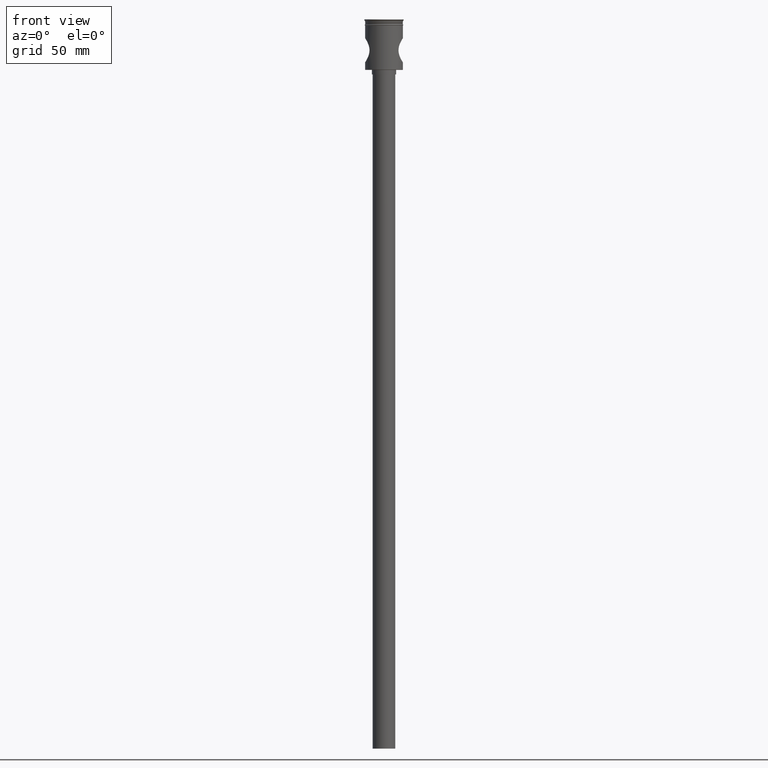
[diagram: clean part render]
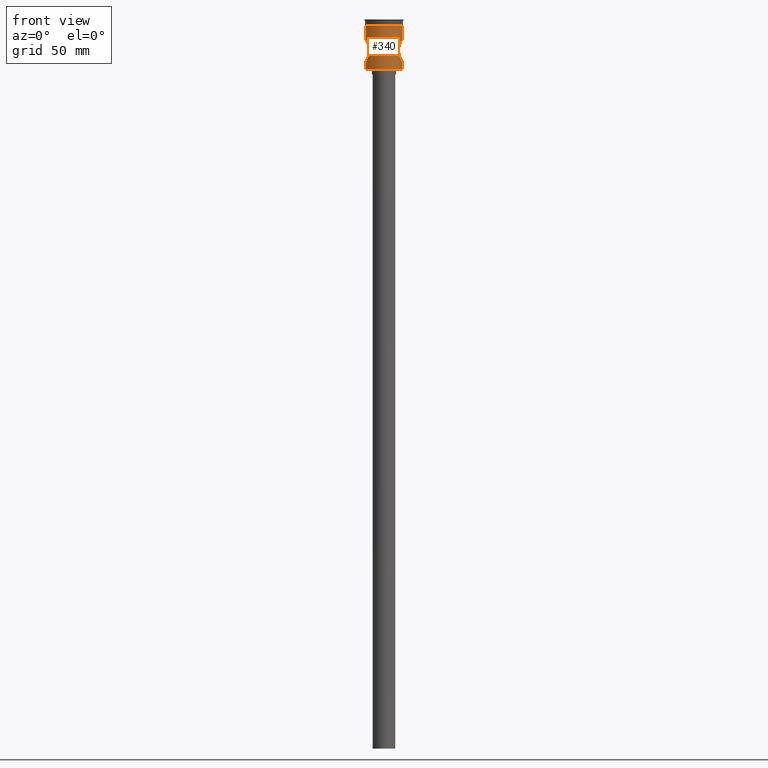
[diagram: same view with one face highlighted and labeled with its STEP entity id]
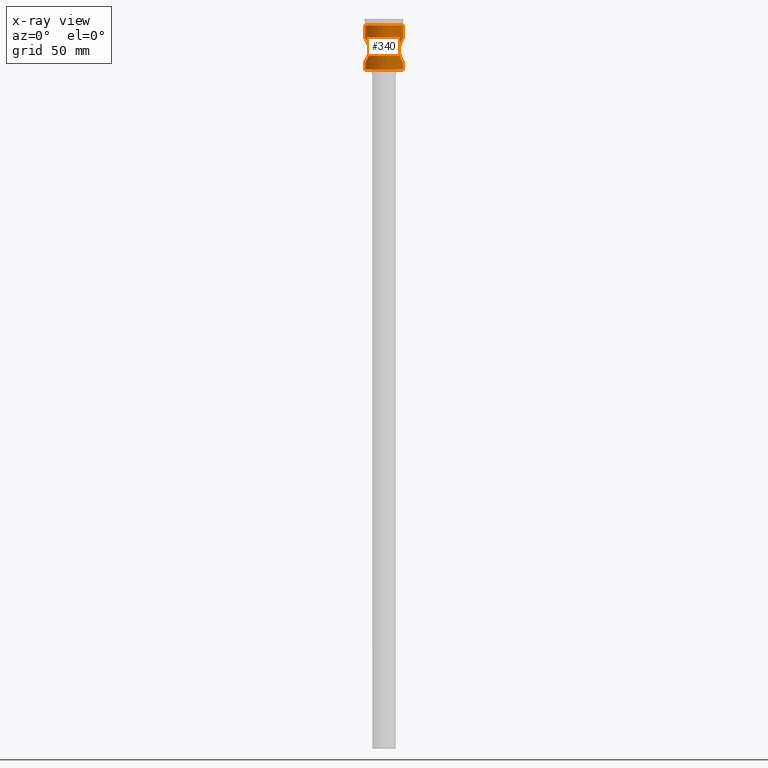
[diagram: x-ray of the same camera — body ghosted, the highlighted face saturated]
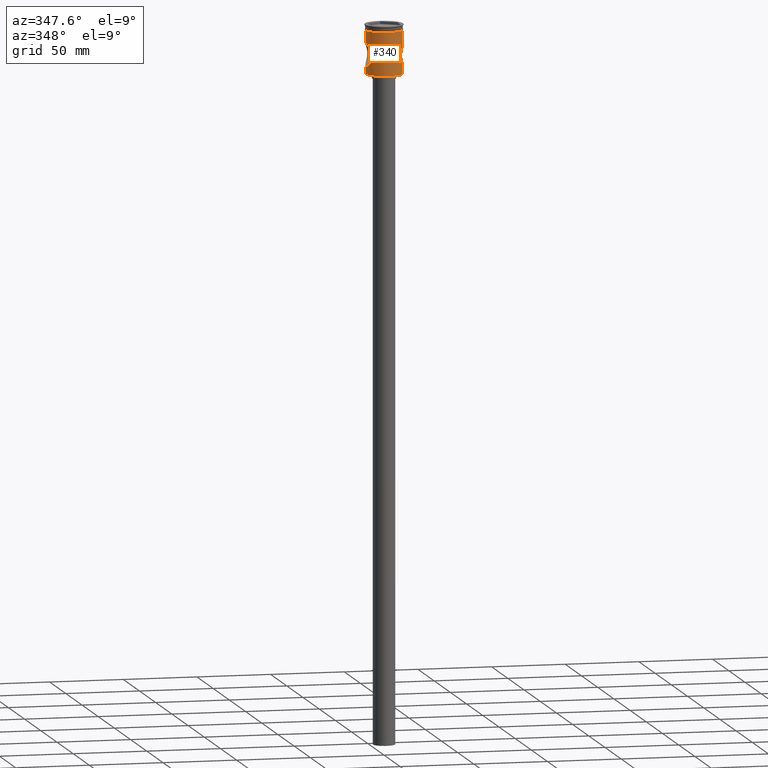
[diagram: same view with one face highlighted and labeled with its STEP entity id]
A machine part, front view. The second image highlights one B-rep face of the part: STEP entity #340.
The next image is the same camera in x-ray: the body ghosted, the highlighted face saturated — about 0% of this face is hidden behind the body in this view.
A second angle (auxiliary view) of the same face is appended — the face is thin or edge-on in the first view.
In plain terms, the highlighted cylindrical surface (edge-blend (fillet) strip) has radius 12.5 mm, axis along (-0, -0, 1).
Its self-contained STEP definition (entity closure, byte-faithful):
#4 = CARTESIAN_POINT ( 'NONE',  ( 9.694572521403603815, -7.891132293869996595, -21.84205955273027655 ) ) ;
#8 = CARTESIAN_POINT ( 'NONE',  ( -12.45636595211379039, -1.077990071471288225, -12.56832314098377168 ) ) ;
#22 = CARTESIAN_POINT ( 'NONE',  ( 11.82426725651903432, -4.061341696050346783, -13.60264837205234123 ) ) ;
#44 = EDGE_CURVE ( 'NONE', #1001, #663, #1115, .T. ) ;
#67 = CARTESIAN_POINT ( 'NONE',  ( 12.22681975302657875, -2.645907749991192937, -28.06777968347509855 ) ) ;
#78 = CYLINDRICAL_SURFACE ( 'NONE', #1112, 12.49999999999999645 ) ;
#81 = CARTESIAN_POINT ( 'NONE',  ( -11.97893811598799019, -3.606041726093998090, -27.66040104288468982 ) ) ;
#86 = EDGE_CURVE ( 'NONE', #1170, #1282, #863, .T. ) ;
#94 = CARTESIAN_POINT ( 'NONE',  ( -10.68141965030588025, -6.495024738260811503, -25.17753358840529643 ) ) ;
#114 = CARTESIAN_POINT ( 'NONE',  ( -12.49999999999999645, -0.5455086926773379252, -28.50000000000000355 ) ) ;
#127 = CARTESIAN_POINT ( 'NONE',  ( 12.49134899006260824, -0.5368360781239377433, -12.51349676487751417 ) ) ;
#130 = DIRECTION ( 'NONE',  ( 1.000000000000000000, 0.000000000000000000, 0.000000000000000000 ) ) ;
#140 = CARTESIAN_POINT ( 'NONE',  ( -9.831927431485985025, -7.719646222588841589, -18.38418844340871061 ) ) ;
#153 = CARTESIAN_POINT ( 'NONE',  ( 0.000000000000000000, 0.000000000000000000, -3.999999999999996447 ) ) ;
#155 = CARTESIAN_POINT ( 'NONE',  ( -10.77000853576665840, -6.353706358841932911, -15.61224821672882968 ) ) ;
#158 = CARTESIAN_POINT ( 'NONE',  ( -12.49999999999999645, 1.530843252841608374E-15, -12.50000000000000178 ) ) ;
#161 = CARTESIAN_POINT ( 'NONE',  ( 10.24171529436143047, -7.170737983946684047, -16.91536847051582981 ) ) ;
#167 = CARTESIAN_POINT ( 'NONE',  ( 12.49999999999999645, 0.000000000000000000, -28.50000000000000355 ) ) ;
#176 = CARTESIAN_POINT ( 'NONE',  ( 12.49999999999999645, 0.000000000000000000, -28.50000000000000355 ) ) ;
#185 = CARTESIAN_POINT ( 'NONE',  ( 11.32275814528974323, -5.311017539796695885, -26.50426606429732601 ) ) ;
#192 = B_SPLINE_CURVE_WITH_KNOTS ( 'NONE', 3,
 ( #1322, #279, #127, #253, #1096, #504, #1201, #723, #974, #22, #1447, #513, #1328, #713, #837, #364, #1547, #1209, #161, #980, #634, #484, #950, #1423, #829, #608, #4, #491, #1307, #261, #1189, #1316, #1475, #292, #989, #1227, #774, #185, #882, #1252, #535, #403, #1339, #67, #1006, #553, #754, #997, #1113, #176 ),
 .UNSPECIFIED., .F., .F.,
 ( 4, 2, 2, 2, 2, 2, 2, 2, 2, 2, 2, 2, 2, 2, 2, 2, 2, 2, 2, 2, 2, 2, 2, 2, 4 ),
 ( 0.02576999226182778019, 0.02657439273090745485, 0.02737879319998712951, 0.02898759413814647884, 0.02979199460722615350, 0.03059639507630582816, 0.03140079554538549589, 0.03220519601446517055, 0.03381399695262450600, 0.03542279789078385532, 0.03703159882894319771, 0.03864039976710254010, 0.03944480023618220782, 0.04024920070526187554, 0.04105360117434153633, 0.04185800164342120405, 0.04346680258158053950, 0.04427120305066021416, 0.04507560351973988189, 0.04668440445789922427, 0.04748880492697889200, 0.04829320539605856666, 0.04990200633421790904, 0.05070640680329758371, 0.05151080727237725143 ),
 .UNSPECIFIED. ) ;
#203 = EDGE_CURVE ( 'NONE', #416, #1173, #192, .T. ) ;
#253 = CARTESIAN_POINT ( 'NONE',  ( 12.45680753857802969, -1.072351860696455050, -12.56763034230891307 ) ) ;
#258 = CARTESIAN_POINT ( 'NONE',  ( -12.49999999999999645, 1.530843252841608374E-15, -12.50000000000000178 ) ) ;
#261 = CARTESIAN_POINT ( 'NONE',  ( 9.953764986108032176, -7.561899278404376368, -23.12434326371111837 ) ) ;
#274 = CARTESIAN_POINT ( 'NONE',  ( -9.650015180279874372, -7.946443617263751591, -19.43182631452544484 ) ) ;
#279 = CARTESIAN_POINT ( 'NONE',  ( 12.49999999999999645, -0.2686376769289277044, -12.50000000000000355 ) ) ;
#292 = CARTESIAN_POINT ( 'NONE',  ( 10.68057655226026625, -6.496405684036827388, -25.17560278568680232 ) ) ;
#319 = DIRECTION ( 'NONE',  ( -0.000000000000000000, -0.000000000000000000, 1.000000000000000000 ) ) ;
#325 = CARTESIAN_POINT ( 'NONE',  ( -10.95759851502933024, -6.017955333637138970, -25.77724630296189190 ) ) ;
#329 = CARTESIAN_POINT ( 'NONE',  ( -11.04973041360231534, -5.847541344671410180, -25.96539333561140950 ) ) ;
#336 = CARTESIAN_POINT ( 'NONE',  ( -10.77326865999855166, -6.342037053953383463, -25.38299917530804706 ) ) ;
#340 = ADVANCED_FACE ( 'NONE', ( #1122 ), #78, .T. ) ;
#360 = CARTESIAN_POINT ( 'NONE',  ( -9.825351555881612242, -7.728608913096384647, -22.63340818634064533 ) ) ;
#364 = CARTESIAN_POINT ( 'NONE',  ( 10.95468395994246968, -6.033861169773391708, -15.22247198273765534 ) ) ;
#403 = CARTESIAN_POINT ( 'NONE',  ( 11.97255694559600769, -3.600821400007698792, -27.64858792036709190 ) ) ;
#409 = ORIENTED_EDGE ( 'NONE', *, *, #1121, .F. ) ;
#410 = CARTESIAN_POINT ( 'NONE',  ( 12.49999999999999645, 0.000000000000000000, 0.000000000000000000 ) ) ;
#416 = VERTEX_POINT ( 'NONE', #1021 ) ;
#422 = DIRECTION ( 'NONE',  ( 1.000000000000000000, 0.000000000000000000, 0.000000000000000000 ) ) ;
#449 = CARTESIAN_POINT ( 'NONE',  ( -11.50038868166273787, -4.919615502726673029, -26.82980181432884592 ) ) ;
#454 = AXIS2_PLACEMENT_3D ( 'NONE', #153, #499, #130 ) ;
#458 = CARTESIAN_POINT ( 'NONE',  ( -10.24633185769106802, -7.164154995734958398, -24.09758546550434133 ) ) ;
#482 = CARTESIAN_POINT ( 'NONE',  ( -9.951847861737379120, -7.567903109691756391, -23.14472692481474425 ) ) ;
#484 = CARTESIAN_POINT ( 'NONE',  ( 9.650481006454375787, -7.945901119098954801, -19.42646661241496986 ) ) ;
#491 = CARTESIAN_POINT ( 'NONE',  ( 9.780592607289705143, -7.784260626568321406, -22.36450508717211960 ) ) ;
#499 = DIRECTION ( 'NONE',  ( -0.000000000000000000, -0.000000000000000000, 1.000000000000000000 ) ) ;
#504 = CARTESIAN_POINT ( 'NONE',  ( 12.32814927920563264, -2.133064077394895897, -12.77081634138414401 ) ) ;
#513 = CARTESIAN_POINT ( 'NONE',  ( 11.58231855636714869, -4.706562070356851812, -14.02588132130155785 ) ) ;
#535 = CARTESIAN_POINT ( 'NONE',  ( 11.82492588981187076, -4.059453444830931623, -27.39848256787114877 ) ) ;
#553 = CARTESIAN_POINT ( 'NONE',  ( 12.42914744973298191, -1.355224675475571683, -28.38894657095907803 ) ) ;
#555 = CARTESIAN_POINT ( 'NONE',  ( -11.32278361962054980, -5.310903790031504812, -26.50427824932999243 ) ) ;
#556 = EDGE_CURVE ( 'NONE', #558, #893, #876, .T. ) ;
#558 = VERTEX_POINT ( 'NONE', #962 ) ;
#572 = CARTESIAN_POINT ( 'NONE',  ( -10.41453676133786210, -6.920961814154464875, -24.54462048307798838 ) ) ;
#575 = VECTOR ( 'NONE', #1462, 1000.000000000000000 ) ;
#591 = CARTESIAN_POINT ( 'NONE',  ( 0.000000000000000000, 0.000000000000000000, -33.30000000000011084 ) ) ;
#604 = DIRECTION ( 'NONE',  ( -0.000000000000000000, -0.000000000000000000, 1.000000000000000000 ) ) ;
#606 = EDGE_CURVE ( 'NONE', #416, #663, #732, .T. ) ;
#608 = CARTESIAN_POINT ( 'NONE',  ( 9.660877953051814515, -7.932130301633685932, -21.57471352266809106 ) ) ;
#611 = CARTESIAN_POINT ( 'NONE',  ( -10.41350288148657555, -6.922544769963277389, -16.45796141815630520 ) ) ;
#621 = CARTESIAN_POINT ( 'NONE',  ( -9.778867081615889134, -7.786427190026567580, -18.64438907348872476 ) ) ;
#628 = DIRECTION ( 'NONE',  ( -0.000000000000000000, -0.000000000000000000, 1.000000000000000000 ) ) ;
#630 = CARTESIAN_POINT ( 'NONE',  ( -12.22838080166956054, -2.639999966342851501, -12.92964855857680995 ) ) ;
#634 = CARTESIAN_POINT ( 'NONE',  ( 9.823930086259023753, -7.730428572254548492, -18.37155159375936009 ) ) ;
#658 = ORIENTED_EDGE ( 'NONE', *, *, #606, .T. ) ;
#663 = VERTEX_POINT ( 'NONE', #1223 ) ;
#712 = LINE ( 'NONE', #1292, #1221 ) ;
#713 = CARTESIAN_POINT ( 'NONE',  ( 11.32051845556725311, -5.304942531477345291, -14.50641544213543632 ) ) ;
#723 = CARTESIAN_POINT ( 'NONE',  ( 12.04102128605738287, -3.365482873782084106, -13.23757297846050918 ) ) ;
#726 = CARTESIAN_POINT ( 'NONE',  ( -9.695983281617312599, -7.889400511741194499, -21.85205995452214367 ) ) ;
#732 = LINE ( 'NONE', #1098, #763 ) ;
#749 = CARTESIAN_POINT ( 'NONE',  ( 12.49999999999999645, 0.000000000000000000, -33.30000000000011084 ) ) ;
#754 = CARTESIAN_POINT ( 'NONE',  ( 12.45574482229450020, -1.085222749987466040, -28.43070192023093412 ) ) ;
#763 = VECTOR ( 'NONE', #604, 1000.000000000000000 ) ;
#774 = CARTESIAN_POINT ( 'NONE',  ( 11.04913184632835765, -5.848685773200742233, -25.96419292266336853 ) ) ;
#800 = ORIENTED_EDGE ( 'NONE', *, *, #86, .T. ) ;
#812 = CARTESIAN_POINT ( 'NONE',  ( -9.616846497738412936, -7.985458352474513966, -21.05224936486945353 ) ) ;
#824 = CARTESIAN_POINT ( 'NONE',  ( -9.952560460729568348, -7.563483000275684098, -17.88020587650935056 ) ) ;
#829 = CARTESIAN_POINT ( 'NONE',  ( 9.615781582082341572, -7.986738915949614714, -21.03451077291008176 ) ) ;
#837 = CARTESIAN_POINT ( 'NONE',  ( 11.22925266099212926, -5.494954958430611214, -14.68017047912133144 ) ) ;
#851 = CARTESIAN_POINT ( 'NONE',  ( -12.03968295628938101, -3.370349911399050935, -13.23978673405735762 ) ) ;
#863 = CIRCLE ( 'NONE', #1237, 12.49999999999999645 ) ;
#871 = CARTESIAN_POINT ( 'NONE',  ( -12.50000000000000000, 1.530808498934191521E-15, -3.999999999999996447 ) ) ;
#876 = B_SPLINE_CURVE_WITH_KNOTS ( 'NONE', 3,
 ( #1172, #114, #894, #1162, #1369, #81, #1506, #449, #555, #329, #325, #336, #94, #572, #458, #482, #360, #726, #1325, #812, #1191, #935, #274, #621, #140, #824, #1090, #1199, #611, #155, #970, #1296, #1073, #946, #1182, #1313, #851, #630, #1082, #1305, #8, #1434, #1541, #258 ),
 .UNSPECIFIED., .F., .F.,
 ( 4, 2, 2, 2, 2, 2, 2, 2, 2, 2, 2, 2, 2, 2, 2, 2, 2, 2, 2, 2, 2, 4 ),
 ( 0.000000000000000000, 0.001610624516364221083, 0.003221249032728443033, 0.004831873549092664116, 0.006442498065456886934, 0.007247810323638999644, 0.008053122581821111486, 0.009663747098185335171, 0.01127437161454955886, 0.01207968387273167070, 0.01288499613091378254, 0.01449562064727802010, 0.01530093290546014062, 0.01610624516364226114, 0.01771686968000651952, 0.01932749419637077096, 0.02093811871273502934, 0.02174343097091715679, 0.02254874322909928425, 0.02415936774546353222, 0.02496468000364565967, 0.02576999226182778366 ),
 .UNSPECIFIED. ) ;
#878 = EDGE_CURVE ( 'NONE', #1282, #1173, #1464, .T. ) ;
#881 = ORIENTED_EDGE ( 'NONE', *, *, #44, .F. ) ;
#882 = CARTESIAN_POINT ( 'NONE',  ( 11.49979938796715118, -4.920626020369351927, -26.82866744699284922 ) ) ;
#893 = VERTEX_POINT ( 'NONE', #158 ) ;
#894 = CARTESIAN_POINT ( 'NONE',  ( -12.46447579769008307, -1.079199628273470823, -28.44481018307722309 ) ) ;
#902 = ORIENTED_EDGE ( 'NONE', *, *, #556, .F. ) ;
#935 = CARTESIAN_POINT ( 'NONE',  ( -9.604276544737977872, -8.000492014107765115, -19.96508625629939004 ) ) ;
#946 = CARTESIAN_POINT ( 'NONE',  ( -11.74563317290945186, -4.282692903467039791, -13.73805650301568271 ) ) ;
#950 = CARTESIAN_POINT ( 'NONE',  ( 9.604845950803451160, -7.999808392904740550, -19.96072037956294309 ) ) ;
#962 = CARTESIAN_POINT ( 'NONE',  ( -12.49999999999999645, 0.000000000000000000, -28.50000000000000355 ) ) ;
#966 = DIRECTION ( 'NONE',  ( -1.000000000000000000, 0.000000000000000000, 0.000000000000000000 ) ) ;
#970 = CARTESIAN_POINT ( 'NONE',  ( -10.95569943340932717, -6.032167288263486249, -15.22028665405100689 ) ) ;
#971 = CARTESIAN_POINT ( 'NONE',  ( -12.49999999999999645, 1.530808498934191127E-15, 0.000000000000000000 ) ) ;
#974 = CARTESIAN_POINT ( 'NONE',  ( 11.97168173856675288, -3.603696557166354619, -13.35287981243517130 ) ) ;
#980 = CARTESIAN_POINT ( 'NONE',  ( 9.947500648090194630, -7.573601934444265105, -17.87138436146137010 ) ) ;
#987 = CARTESIAN_POINT ( 'NONE',  ( -12.49999999999999645, 1.530808498934191127E-15, -33.30000000000011084 ) ) ;
#989 = CARTESIAN_POINT ( 'NONE',  ( 10.77171733329285352, -6.344673314144587017, -25.37958406506654541 ) ) ;
#997 = CARTESIAN_POINT ( 'NONE',  ( 12.49104983426664894, -0.5449417703514889411, -28.48603655335807616 ) ) ;
#998 = EDGE_CURVE ( 'NONE', #1170, #558, #1320, .T. ) ;
#1001 = VERTEX_POINT ( 'NONE', #871 ) ;
#1006 = CARTESIAN_POINT ( 'NONE',  ( 12.32614486164619905, -2.144181392186814250, -28.22599079984304637 ) ) ;
#1016 = VECTOR ( 'NONE', #319, 1000.000000000000000 ) ;
#1021 = CARTESIAN_POINT ( 'NONE',  ( 12.49999999999999645, -3.475392982267206074E-20, -12.50000000000000178 ) ) ;
#1035 = ORIENTED_EDGE ( 'NONE', *, *, #203, .F. ) ;
#1073 = CARTESIAN_POINT ( 'NONE',  ( -11.50119995780601201, -4.917095492503143817, -14.16884486330757653 ) ) ;
#1082 = CARTESIAN_POINT ( 'NONE',  ( -12.32774079225239028, -2.134726252461476736, -12.77147006255823491 ) ) ;
#1090 = CARTESIAN_POINT ( 'NONE',  ( -10.02037738876441075, -7.473797691934477072, -17.63469963449612266 ) ) ;
#1096 = CARTESIAN_POINT ( 'NONE',  ( 12.43066710745116588, -1.341388092945098531, -12.60866053316501301 ) ) ;
#1098 = CARTESIAN_POINT ( 'NONE',  ( 12.49999999999999645, 0.000000000000000000, 0.000000000000000000 ) ) ;
#1112 = AXIS2_PLACEMENT_3D ( 'NONE', #1143, #1367, #422 ) ;
#1113 = CARTESIAN_POINT ( 'NONE',  ( 12.50000000000000178, -0.2724455289350958820, -28.50000000000001066 ) ) ;
#1115 = CIRCLE ( 'NONE', #454, 12.50000000000000000 ) ;
#1121 = EDGE_CURVE ( 'NONE', #893, #1001, #712, .T. ) ;
#1122 = FACE_OUTER_BOUND ( 'NONE', #1147, .T. ) ;
#1143 = CARTESIAN_POINT ( 'NONE',  ( 0.000000000000000000, 0.000000000000000000, 0.000000000000000000 ) ) ;
#1147 = EDGE_LOOP ( 'NONE', ( #1522, #800, #1359, #1035, #658, #881, #409, #902 ) ) ;
#1162 = CARTESIAN_POINT ( 'NONE',  ( -12.32937529947439792, -2.124696089697953205, -28.23112845639076340 ) ) ;
#1170 = VERTEX_POINT ( 'NONE', #987 ) ;
#1172 = CARTESIAN_POINT ( 'NONE',  ( -12.49999999999999645, 0.000000000000000000, -28.50000000000000355 ) ) ;
#1173 = VERTEX_POINT ( 'NONE', #167 ) ;
#1182 = CARTESIAN_POINT ( 'NONE',  ( -11.82354718861211751, -4.063371894608727608, -13.60388813298232513 ) ) ;
#1184 = DIRECTION ( 'NONE',  ( -0.000000000000000000, -0.000000000000000000, 1.000000000000000000 ) ) ;
#1189 = CARTESIAN_POINT ( 'NONE',  ( 10.02253038761470627, -7.470924704462466259, -23.37288695449093723 ) ) ;
#1191 = CARTESIAN_POINT ( 'NONE',  ( -9.604895432773121300, -7.999748985399198986, -20.77841958597585048 ) ) ;
#1199 = CARTESIAN_POINT ( 'NONE',  ( -10.24149294623593143, -7.171072586796539028, -16.91585289741308884 ) ) ;
#1201 = CARTESIAN_POINT ( 'NONE',  ( 12.22865895483604959, -2.638290072440492295, -12.92921996348513858 ) ) ;
#1209 = CARTESIAN_POINT ( 'NONE',  ( 10.41381587689204302, -6.922042856426291024, -16.45722377159888339 ) ) ;
#1221 = VECTOR ( 'NONE', #1184, 1000.000000000000000 ) ;
#1223 = CARTESIAN_POINT ( 'NONE',  ( 12.50000000000000000, 0.000000000000000000, -3.999999999999996447 ) ) ;
#1227 = CARTESIAN_POINT ( 'NONE',  ( 10.95618371808392588, -6.020532543485915156, -25.77431588019688036 ) ) ;
#1237 = AXIS2_PLACEMENT_3D ( 'NONE', #591, #628, #966 ) ;
#1252 = CARTESIAN_POINT ( 'NONE',  ( 11.74577852983650317, -4.282367724400620190, -27.26220930574857704 ) ) ;
#1282 = VERTEX_POINT ( 'NONE', #749 ) ;
#1292 = CARTESIAN_POINT ( 'NONE',  ( -12.49999999999999645, 1.530808498934191127E-15, 0.000000000000000000 ) ) ;
#1296 = CARTESIAN_POINT ( 'NONE',  ( -11.32358097886961801, -5.309510908151876762, -14.49404386253078236 ) ) ;
#1305 = CARTESIAN_POINT ( 'NONE',  ( -12.43000214087199140, -1.347259841825425797, -12.60970857887207153 ) ) ;
#1307 = CARTESIAN_POINT ( 'NONE',  ( 9.833011243020196801, -7.718267162390879399, -22.62081358739450465 ) ) ;
#1313 = CARTESIAN_POINT ( 'NONE',  ( -11.97039897339417713, -3.607881330226538452, -13.35503377591461849 ) ) ;
#1316 = CARTESIAN_POINT ( 'NONE',  ( 10.24506394556385303, -7.166030281330033169, -24.09455026104630804 ) ) ;
#1320 = LINE ( 'NONE', #971, #575 ) ;
#1322 = CARTESIAN_POINT ( 'NONE',  ( 12.49999999999999645, -3.475392982267206074E-20, -12.50000000000000178 ) ) ;
#1325 = CARTESIAN_POINT ( 'NONE',  ( -9.662429422409402946, -7.930242071786067548, -21.58801890745425922 ) ) ;
#1328 = CARTESIAN_POINT ( 'NONE',  ( 11.49685725809058567, -4.911092195449596076, -14.17966420493785407 ) ) ;
#1339 = CARTESIAN_POINT ( 'NONE',  ( 12.04078069653766825, -3.366168072378722176, -27.76202050384523901 ) ) ;
#1359 = ORIENTED_EDGE ( 'NONE', *, *, #878, .T. ) ;
#1367 = DIRECTION ( 'NONE',  ( -0.000000000000000000, -0.000000000000000000, 1.000000000000000000 ) ) ;
#1369 = CARTESIAN_POINT ( 'NONE',  ( -12.22805391727019497, -2.640680350465368864, -28.06978779834291160 ) ) ;
#1423 = CARTESIAN_POINT ( 'NONE',  ( 9.604607193058788184, -8.000095042092127073, -20.76536489131949992 ) ) ;
#1434 = CARTESIAN_POINT ( 'NONE',  ( -12.49132987171840803, -0.5383245889663377248, -12.51352599534948240 ) ) ;
#1447 = CARTESIAN_POINT ( 'NONE',  ( 11.74602063590885059, -4.281685285502878635, -13.73737400827888422 ) ) ;
#1462 = DIRECTION ( 'NONE',  ( -0.000000000000000000, -0.000000000000000000, 1.000000000000000000 ) ) ;
#1464 = LINE ( 'NONE', #410, #1016 ) ;
#1475 = CARTESIAN_POINT ( 'NONE',  ( 10.41397768299478166, -6.921782864204724994, -24.54315654720842943 ) ) ;
#1506 = CARTESIAN_POINT ( 'NONE',  ( -11.83084558445469980, -4.061114290533304860, -27.41204444593460465 ) ) ;
#1522 = ORIENTED_EDGE ( 'NONE', *, *, #998, .F. ) ;
#1541 = CARTESIAN_POINT ( 'NONE',  ( -12.50000000000000000, -0.2689421781267052336, -12.50000000000000178 ) ) ;
#1547 = CARTESIAN_POINT ( 'NONE',  ( 10.76964293615448476, -6.354292206984882618, -15.61311065325000591 ) ) ;